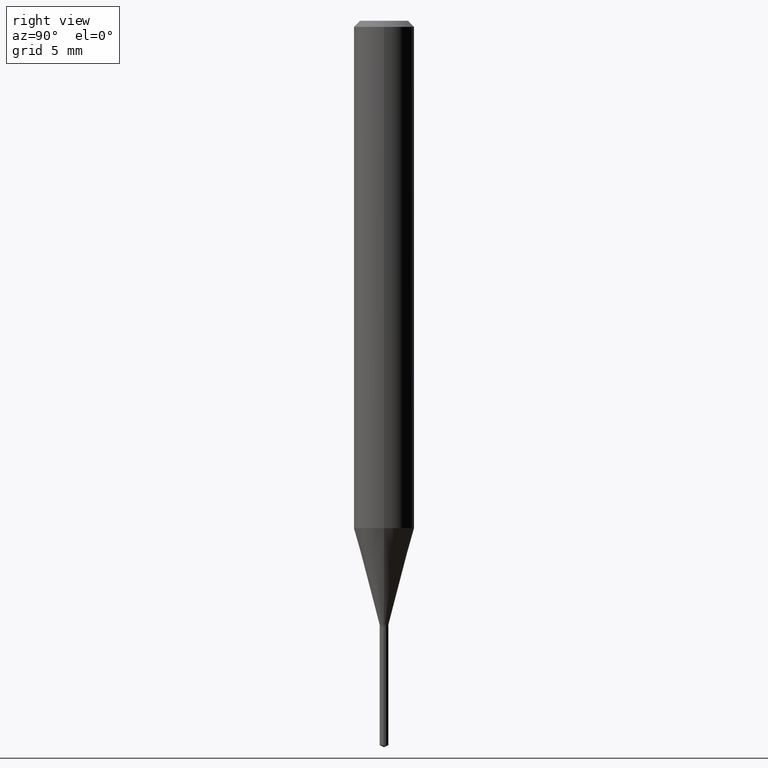
[diagram: clean part render]
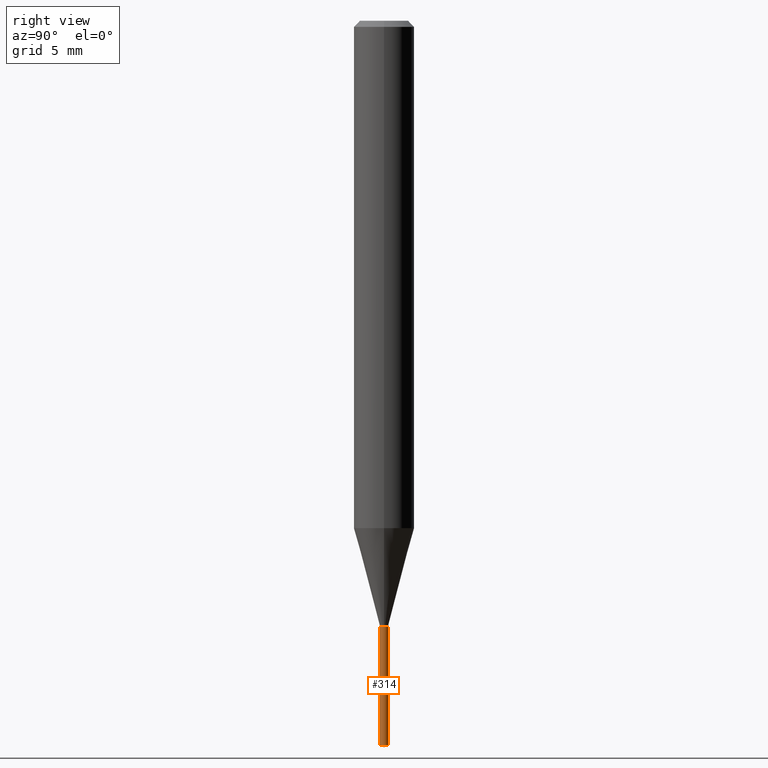
[diagram: same view with one face highlighted and labeled with its STEP entity id]
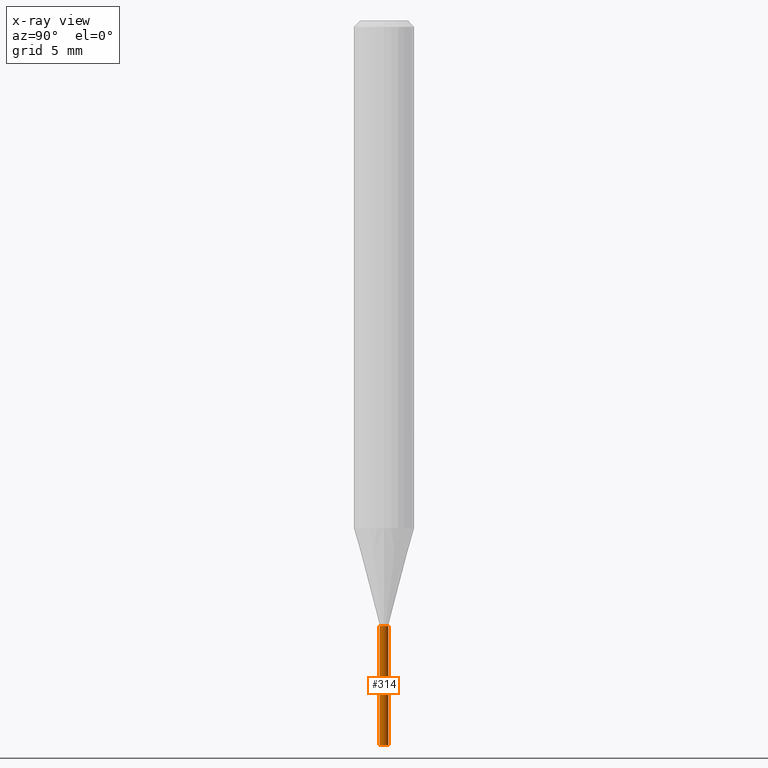
[diagram: x-ray of the same camera — body ghosted, the highlighted face saturated]
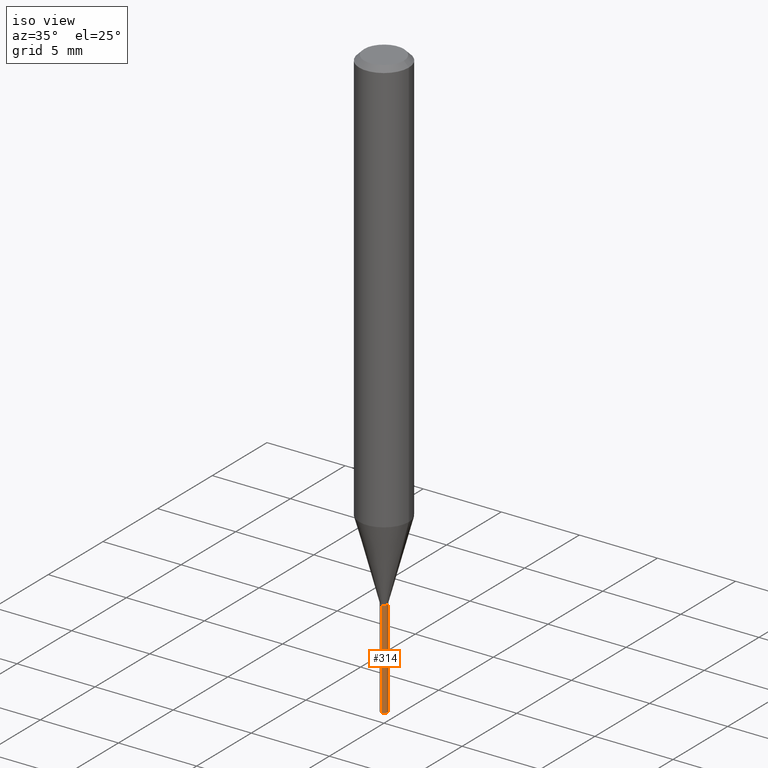
[diagram: same view with one face highlighted and labeled with its STEP entity id]
A machine part, right view. The second image highlights one B-rep face of the part: STEP entity #314.
The next image is the same camera in x-ray: the body ghosted, the highlighted face saturated — about 0% of this face is hidden behind the body in this view.
A second angle (iso view) of the same face is appended — the face is thin or edge-on in the first view.
In plain terms, the highlighted cylindrical surface (edge-blend (fillet) strip) has radius 0.2286 mm, axis along (-0, 0, 1).
Its self-contained STEP definition (entity closure, byte-faithful):
#2 = CARTESIAN_POINT ( 'NONE',  ( 3.056836007731421306E-29, -4.364351673553932471E-15, -1.250000000000000000 ) ) ;
#7 = DIRECTION ( 'NONE',  ( -6.982962677686265133E-15, -1.000000000000000000, 0.000000000000000000 ) ) ;
#16 = ORIENTED_EDGE ( 'NONE', *, *, #197, .F. ) ;
#30 = ORIENTED_EDGE ( 'NONE', *, *, #215, .F. ) ;
#68 = DIRECTION ( 'NONE',  ( -2.445358220953112322E-29, 3.491639703189524906E-15, 1.000000000000000000 ) ) ;
#72 = CARTESIAN_POINT ( 'NONE',  ( 6.394884621844560765E-17, 0.008999999999994779537, -1.495803231076605178 ) ) ;
#86 = FACE_OUTER_BOUND ( 'NONE', #212, .T. ) ;
#89 = CARTESIAN_POINT ( 'NONE',  ( 3.056836007731421306E-29, -4.364351673553932471E-15, -1.250000000000000000 ) ) ;
#124 = CYLINDRICAL_SURFACE ( 'NONE', #194, 0.008999999999999999320 ) ;
#127 = CARTESIAN_POINT ( 'NONE',  ( 6.394884621843956793E-17, 0.008999999999995634756, -1.250000000000000000 ) ) ;
#153 = DIRECTION ( 'NONE',  ( -2.445358220953112322E-29, 3.491639703189524906E-15, 1.000000000000000000 ) ) ;
#158 = CARTESIAN_POINT ( 'NONE',  ( 6.394884621844563230E-17, 0.008999999999995636490, -1.250000000000000000 ) ) ;
#189 = CARTESIAN_POINT ( 'NONE',  ( -6.284666409914582809E-17, -0.009000000000004363884, -1.250000000000000000 ) ) ;
#194 = AXIS2_PLACEMENT_3D ( 'NONE', #89, #241, #7 ) ;
#197 = EDGE_CURVE ( 'NONE', #209, #371, #448, .T. ) ;
#209 = VERTEX_POINT ( 'NONE', #189 ) ;
#212 = EDGE_LOOP ( 'NONE', ( #289, #428, #16, #30 ) ) ;
#215 = EDGE_CURVE ( 'NONE', #357, #209, #302, .T. ) ;
#219 = EDGE_CURVE ( 'NONE', #357, #244, #245, .T. ) ;
#222 = VECTOR ( 'NONE', #412, 39.37007874015748143 ) ;
#232 = DIRECTION ( 'NONE',  ( -6.982962677686265133E-15, -1.000000000000000000, 0.000000000000000000 ) ) ;
#241 = DIRECTION ( 'NONE',  ( -2.445358220953112322E-29, 3.491639703189524906E-15, 1.000000000000000000 ) ) ;
#244 = VERTEX_POINT ( 'NONE', #72 ) ;
#245 = CIRCLE ( 'NONE', #422, 0.009000000000000001055 ) ;
#289 = ORIENTED_EDGE ( 'NONE', *, *, #219, .T. ) ;
#302 = LINE ( 'NONE', #336, #222 ) ;
#303 = AXIS2_PLACEMENT_3D ( 'NONE', #2, #153, #232 ) ;
#314 = ADVANCED_FACE ( 'NONE', ( #86 ), #124, .T. ) ;
#336 = CARTESIAN_POINT ( 'NONE',  ( -6.284666409914582809E-17, -0.009000000000004363884, -1.250000000000000000 ) ) ;
#357 = VERTEX_POINT ( 'NONE', #457 ) ;
#371 = VERTEX_POINT ( 'NONE', #158 ) ;
#377 = DIRECTION ( 'NONE',  ( -6.982962677686265133E-15, -1.000000000000000000, 0.000000000000000000 ) ) ;
#406 = CARTESIAN_POINT ( 'NONE',  ( 3.657912959581434869E-29, -5.222607994353275503E-15, -1.495803231076605178 ) ) ;
#407 = VECTOR ( 'NONE', #472, 39.37007874015748143 ) ;
#412 = DIRECTION ( 'NONE',  ( -2.445358220953112322E-29, 3.491639703189525300E-15, 1.000000000000000000 ) ) ;
#422 = AXIS2_PLACEMENT_3D ( 'NONE', #406, #68, #377 ) ;
#428 = ORIENTED_EDGE ( 'NONE', *, *, #442, .T. ) ;
#431 = LINE ( 'NONE', #127, #407 ) ;
#442 = EDGE_CURVE ( 'NONE', #244, #371, #431, .T. ) ;
#448 = CIRCLE ( 'NONE', #303, 0.008999999999999999320 ) ;
#457 = CARTESIAN_POINT ( 'NONE',  ( -6.284666409913983768E-17, -0.009000000000005224307, -1.495803231076605178 ) ) ;
#472 = DIRECTION ( 'NONE',  ( -2.445358220953112322E-29, 3.491639703189525300E-15, 1.000000000000000000 ) ) ;